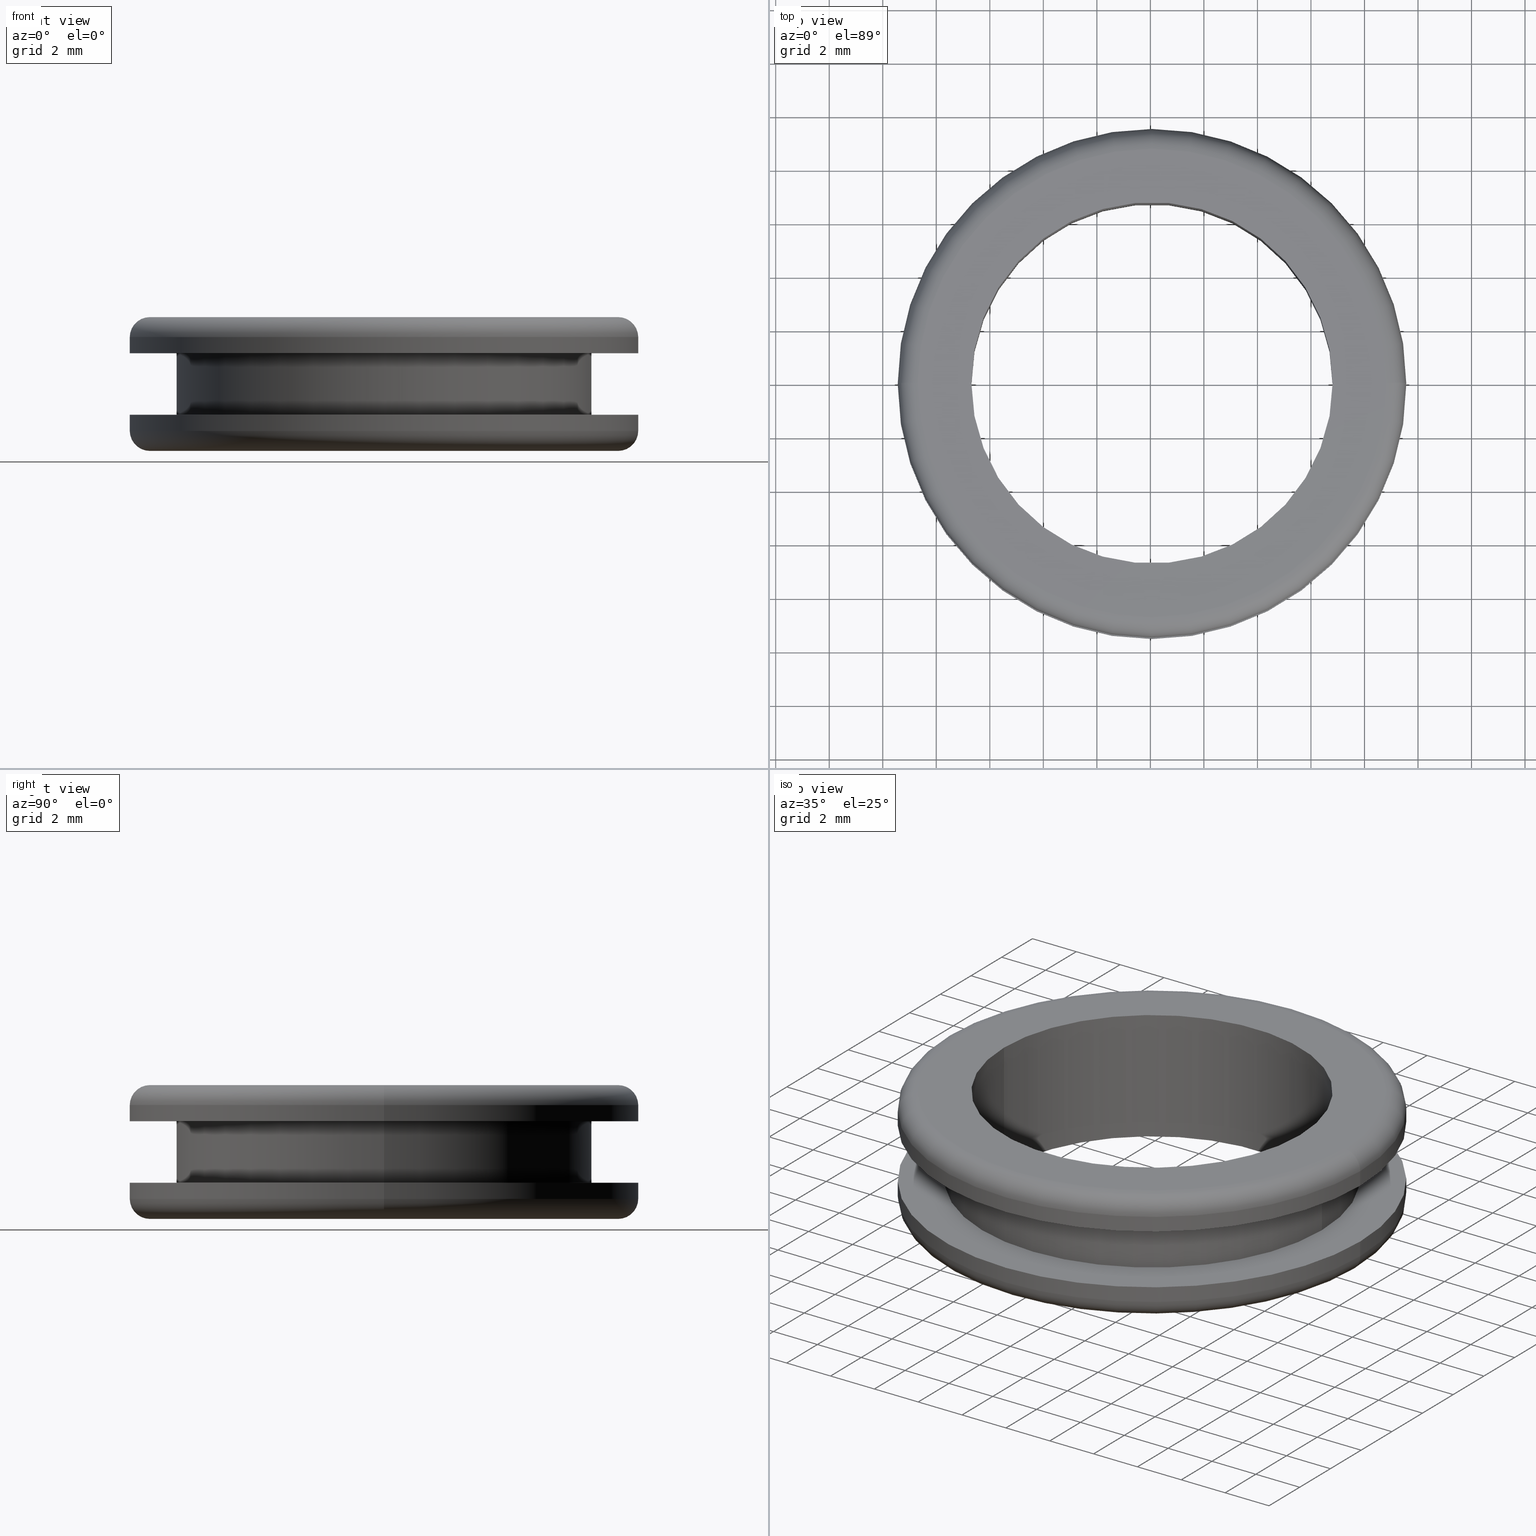
[diagram: canonical four-view strip — front | top / right | iso, engineering-drawing reading convention]
A machine part, canonical four-view strip (front | top / right | iso — engineering-drawing reading convention). The complete STEP part file that produces these views, byte-faithful:
ISO-10303-21;
HEADER;
FILE_DESCRIPTION (( 'STEP AP214' ),
    '1' );
FILE_NAME ('TM_346_3.STEP',
    '2018-06-13T02:46:59',
    ( '' ),
    ( '' ),
    'SwSTEP 2.0',
    'SolidWorks 2015',
    '' );
FILE_SCHEMA (( 'AUTOMOTIVE_DESIGN' ));
ENDSEC;

DATA;
#1 = DIRECTION ( 'NONE',  ( 0.0000000000000000000, 0.0000000000000000000, -1.000000000000000000 ) ) ;
#2 = AXIS2_PLACEMENT_3D ( 'NONE', #113, #468, #150 ) ;
#3 = PLANE ( 'NONE',  #21 ) ;
#4 = EDGE_CURVE ( 'NONE', #463, #54, #253, .T. ) ;
#5 = DIRECTION ( 'NONE',  ( 0.0000000000000000000, 0.0000000000000000000, -1.000000000000000000 ) ) ;
#6 = CYLINDRICAL_SURFACE ( 'NONE', #49, 6.750000000019698900 ) ;
#7 = CARTESIAN_POINT ( 'NONE',  ( 98.31085506629669600, 0.0000000000000000000, 0.0000000000000000000 ) ) ;
#8 = CARTESIAN_POINT ( 'NONE',  ( 113.8108550663362000, 0.0000000000000000000, 139.0502122310740000 ) ) ;
#9 = ORIENTED_EDGE ( 'NONE', *, *, #4, .F. ) ;
#10 = ORIENTED_EDGE ( 'NONE', *, *, #379, .T. ) ;
#11 = DIRECTION ( 'NONE',  ( -1.000000000000000000, 0.0000000000000000000, 0.0000000000000000000 ) ) ;
#12 = PRODUCT_DEFINITION ( 'UNKNOWN', '', #34, #80 ) ;
#13 = DIRECTION ( 'NONE',  ( -1.000000000000000000, 0.0000000000000000000, 0.0000000000000000000 ) ) ;
#14 = EDGE_CURVE ( 'NONE', #354, #384, #181, .T. ) ;
#15 = EDGE_LOOP ( 'NONE', ( #473, #342, #421, #455 ) ) ;
#16 = AXIS2_PLACEMENT_3D ( 'NONE', #374, #149, #477 ) ;
#17 = VERTEX_POINT ( 'NONE', #446 ) ;
#18 = CYLINDRICAL_SURFACE ( 'NONE', #232, 9.499999999876246500 ) ;
#19 = ORIENTED_EDGE ( 'NONE', *, *, #77, .T. ) ;
#20 = AXIS2_PLACEMENT_3D ( 'NONE', #165, #273, #13 ) ;
#21 = AXIS2_PLACEMENT_3D ( 'NONE', #192, #414, #444 ) ;
#22 = CIRCLE ( 'NONE', #16, 8.749999999876093800 ) ;
#23 = EDGE_CURVE ( 'NONE', #262, #316, #267, .T. ) ;
#24 = EDGE_CURVE ( 'NONE', #210, #262, #195, .T. ) ;
#25 = VECTOR ( 'NONE', #309, 1000.000000000000000 ) ;
#26 = ORIENTED_EDGE ( 'NONE', *, *, #114, .T. ) ;
#27 = CARTESIAN_POINT ( 'NONE',  ( 115.5608550661926400, 1.163414459174830700E-015, 0.0000000000000000000 ) ) ;
#28 = ADVANCED_FACE ( 'NONE', ( #285, #240 ), #32, .F. ) ;
#29 = VERTEX_POINT ( 'NONE', #438 ) ;
#30 = DIRECTION ( 'NONE',  ( -1.000000000000000000, 0.0000000000000000000, 0.0000000000000000000 ) ) ;
#31 = VERTEX_POINT ( 'NONE', #323 ) ;
#32 = PLANE ( 'NONE',  #277 ) ;
#33 = CARTESIAN_POINT ( 'NONE',  ( 114.8108550661924900, 1.071565949238759400E-015, 138.4502122310740000 ) ) ;
#34 = PRODUCT_DEFINITION_FORMATION_WITH_SPECIFIED_SOURCE ( 'ANY', '', #394, .NOT_KNOWN. ) ;
#35 = CARTESIAN_POINT ( 'NONE',  ( 97.31085506644029700, 0.0000000000000000000, 138.4502122310740000 ) ) ;
#36 = DIRECTION ( 'NONE',  ( -1.000000000000000000, 0.0000000000000000000, 0.0000000000000000000 ) ) ;
#37 = FILL_AREA_STYLE ('',( #312 ) ) ;
#38 = DIRECTION ( 'NONE',  ( 0.0000000000000000000, 0.0000000000000000000, -1.000000000000000000 ) ) ;
#39 = CYLINDRICAL_SURFACE ( 'NONE', #101, 7.750000000019699800 ) ;
#40 = CARTESIAN_POINT ( 'NONE',  ( 106.0608550663163900, 0.0000000000000000000, 137.7002122310740000 ) ) ;
#41 = EDGE_CURVE ( 'NONE', #308, #303, #168, .T. ) ;
#42 = DIRECTION ( 'NONE',  ( 0.0000000000000000000, 0.0000000000000000000, -1.000000000000000000 ) ) ;
#43 = CARTESIAN_POINT ( 'NONE',  ( 112.8108550663360900, 8.266365894268762600E-016, 142.7002122310740000 ) ) ;
#44 = FACE_OUTER_BOUND ( 'NONE', #347, .T. ) ;
#45 = EDGE_LOOP ( 'NONE', ( #9, #453 ) ) ;
#46 = AXIS2_PLACEMENT_3D ( 'NONE', #115, #337, #76 ) ;
#47 = CARTESIAN_POINT ( 'NONE',  ( 115.5608550661927900, 1.163414459174849600E-015, 139.0502122310740000 ) ) ;
#48 =( LENGTH_UNIT ( ) NAMED_UNIT ( * ) SI_UNIT ( .MILLI., .METRE. ) );
#49 = AXIS2_PLACEMENT_3D ( 'NONE', #244, #275, #126 ) ;
#50 = AXIS2_PLACEMENT_3D ( 'NONE', #299, #42, #36 ) ;
#51 = EDGE_CURVE ( 'NONE', #391, #404, #407, .T. ) ;
#52 = EDGE_CURVE ( 'NONE', #54, #210, #380, .T. ) ;
#53 = FACE_OUTER_BOUND ( 'NONE', #239, .T. ) ;
#54 = VERTEX_POINT ( 'NONE', #224 ) ;
#55 = VECTOR ( 'NONE', #338, 1000.000000000000000 ) ;
#56 = EDGE_LOOP ( 'NONE', ( #171, #134, #62, #164 ) ) ;
#57 = PRODUCT_RELATED_PRODUCT_CATEGORY ( 'part', '', ( #394 ) ) ;
#58 = EDGE_LOOP ( 'NONE', ( #357, #218 ) ) ;
#59 = EDGE_CURVE ( 'NONE', #384, #437, #266, .T. ) ;
#60 = EDGE_LOOP ( 'NONE', ( #140, #94, #399, #428 ) ) ;
#61 = ADVANCED_FACE ( 'NONE', ( #159, #160 ), #66, .F. ) ;
#62 = ORIENTED_EDGE ( 'NONE', *, *, #379, .F. ) ;
#63 = AXIS2_PLACEMENT_3D ( 'NONE', #148, #372, #332 ) ;
#64 = CARTESIAN_POINT ( 'NONE',  ( 106.0608550663163900, 0.0000000000000000000, 141.9502122310738100 ) ) ;
#65 = ORIENTED_EDGE ( 'NONE', *, *, #319, .T. ) ;
#66 = PLANE ( 'NONE',  #382 ) ;
#67 = DIRECTION ( 'NONE',  ( 0.0000000000000000000, 0.0000000000000000000, -1.000000000000000000 ) ) ;
#68 = ORIENTED_EDGE ( 'NONE', *, *, #114, .F. ) ;
#69 = DIRECTION ( 'NONE',  ( -1.000000000000000000, 0.0000000000000000000, 0.0000000000000000000 ) ) ;
#70 = DIRECTION ( 'NONE',  ( 0.0000000000000000000, 0.0000000000000000000, -1.000000000000000000 ) ) ;
#71 = DIRECTION ( 'NONE',  ( -1.224646799147353200E-016, 1.000000000000000000, 0.0000000000000000000 ) ) ;
#72 = FACE_OUTER_BOUND ( 'NONE', #189, .T. ) ;
#73 = DIRECTION ( 'NONE',  ( -0.0000000000000000000, -1.000000000000000000, -0.0000000000000000000 ) ) ;
#74 = STYLED_ITEM ( 'NONE', ( #362 ), #241 ) ;
#75 = AXIS2_PLACEMENT_3D ( 'NONE', #221, #472, #289 ) ;
#76 = DIRECTION ( 'NONE',  ( -1.000000000000000000, 0.0000000000000000000, 0.0000000000000000000 ) ) ;
#77 = EDGE_CURVE ( 'NONE', #404, #236, #246, .T. ) ;
#78 = EDGE_CURVE ( 'NONE', #463, #430, #255, .T. ) ;
#79 = DIRECTION ( 'NONE',  ( -1.000000000000000000, 0.0000000000000000000, 0.0000000000000000000 ) ) ;
#80 = PRODUCT_DEFINITION_CONTEXT ( 'detailed design', #223, 'design' ) ;
#81 = CARTESIAN_POINT ( 'NONE',  ( 106.0608550663163900, 0.0000000000000000000, 0.0000000000000000000 ) ) ;
#82 = CIRCLE ( 'NONE', #50, 9.499999999876093800 ) ;
#83 = COLOUR_RGB ( '',0.7921568627450980000, 0.8196078431372548800, 0.9333333333333333500 ) ;
#84 = VERTEX_POINT ( 'NONE', #416 ) ;
#85 = DIRECTION ( 'NONE',  ( 0.0000000000000000000, 0.0000000000000000000, -1.000000000000000000 ) ) ;
#86 = ORIENTED_EDGE ( 'NONE', *, *, #395, .T. ) ;
#87 = CARTESIAN_POINT ( 'NONE',  ( 99.31085506629669600, 0.0000000000000000000, 0.0000000000000000000 ) ) ;
#88 = SHAPE_DEFINITION_REPRESENTATION ( #296, #241 ) ;
#89 = DIRECTION ( 'NONE',  ( 0.0000000000000000000, 0.0000000000000000000, -1.000000000000000000 ) ) ;
#90 = CIRCLE ( 'NONE', #63, 7.750000000019699800 ) ;
#91 = MANIFOLD_SOLID_BREP ( '���߰�1', #327 ) ;
#92 = CARTESIAN_POINT ( 'NONE',  ( 0.0000000000000000000, 0.0000000000000000000, 0.0000000000000000000 ) ) ;
#93 = EDGE_CURVE ( 'NONE', #54, #463, #22, .T. ) ;
#94 = ORIENTED_EDGE ( 'NONE', *, *, #93, .T. ) ;
#95 = PRESENTATION_STYLE_ASSIGNMENT (( #227 ) ) ;
#96 = ORIENTED_EDGE ( 'NONE', *, *, #24, .T. ) ;
#97 = AXIS2_PLACEMENT_3D ( 'NONE', #478, #229, #447 ) ;
#98 = ORIENTED_EDGE ( 'NONE', *, *, #129, .F. ) ;
#99 = ORIENTED_EDGE ( 'NONE', *, *, #129, .T. ) ;
#100 = PRESENTATION_LAYER_ASSIGNMENT (  '', '', ( #74 ) ) ;
#101 = AXIS2_PLACEMENT_3D ( 'NONE', #111, #258, #226 ) ;
#102 = EDGE_CURVE ( 'NONE', #391, #354, #237, .T. ) ;
#103 = EDGE_CURVE ( 'NONE', #303, #308, #420, .T. ) ;
#104 = ADVANCED_FACE ( 'NONE', ( #44 ), #274, .F. ) ;
#105 = DIRECTION ( 'NONE',  ( 0.0000000000000000000, 0.0000000000000000000, -1.000000000000000000 ) ) ;
#106 = ORIENTED_EDGE ( 'NONE', *, *, #234, .F. ) ;
#107 = DIRECTION ( 'NONE',  ( 0.0000000000000000000, 0.0000000000000000000, -1.000000000000000000 ) ) ;
#108 = ORIENTED_EDGE ( 'NONE', *, *, #23, .T. ) ;
#109 = CARTESIAN_POINT ( 'NONE',  ( 115.5608550661924900, 1.163414459174811700E-015, 141.9502122310738100 ) ) ;
#110 = ORIENTED_EDGE ( 'NONE', *, *, #24, .F. ) ;
#111 = CARTESIAN_POINT ( 'NONE',  ( 106.0608550663163900, 0.0000000000000000000, 0.0000000000000000000 ) ) ;
#112 = CARTESIAN_POINT ( 'NONE',  ( 106.0608550663163900, 0.0000000000000000000, 142.7002122310740000 ) ) ;
#113 = CARTESIAN_POINT ( 'NONE',  ( 106.0608550663163900, 0.0000000000000000000, 0.0000000000000000000 ) ) ;
#114 = EDGE_CURVE ( 'NONE', #354, #236, #459, .T. ) ;
#115 = CARTESIAN_POINT ( 'NONE',  ( 106.0608550663163900, 0.0000000000000000000, 142.7002122310740000 ) ) ;
#116 = FILL_AREA_STYLE ('',( #298 ) ) ;
#117 = FACE_OUTER_BOUND ( 'NONE', #220, .T. ) ;
#118 = CARTESIAN_POINT ( 'NONE',  ( 106.0608550663163900, 0.0000000000000000000, 0.0000000000000000000 ) ) ;
#119 = CARTESIAN_POINT ( 'NONE',  ( 96.56085506644029700, 0.0000000000000000000, 141.3502122310739800 ) ) ;
#120 = EDGE_LOOP ( 'NONE', ( #209, #158 ) ) ;
#121 = DIRECTION ( 'NONE',  ( 0.0000000000000000000, 0.0000000000000000000, -1.000000000000000000 ) ) ;
#122 = ORIENTED_EDGE ( 'NONE', *, *, #130, .F. ) ;
#123 = AXIS2_PLACEMENT_3D ( 'NONE', #377, #194, #451 ) ;
#124 = ORIENTED_EDGE ( 'NONE', *, *, #51, .F. ) ;
#125 = CARTESIAN_POINT ( 'NONE',  ( 106.0608550663163900, 0.0000000000000000000, 141.9502122310738100 ) ) ;
#126 = DIRECTION ( 'NONE',  ( -1.000000000000000000, 0.0000000000000000000, 0.0000000000000000000 ) ) ;
#127 = MECHANICAL_DESIGN_GEOMETRIC_PRESENTATION_REPRESENTATION (  '', ( #74 ), #151 ) ;
#128 = AXIS2_PLACEMENT_3D ( 'NONE', #418, #196, #452 ) ;
#129 = EDGE_CURVE ( 'NONE', #84, #270, #90, .T. ) ;
#130 = EDGE_CURVE ( 'NONE', #303, #17, #450, .T. ) ;
#131 = TOROIDAL_SURFACE ( 'NONE', #412, 8.749999999876090200, 0.7500000000000000000 ) ;
#132 = ORIENTED_EDGE ( 'NONE', *, *, #103, .F. ) ;
#133 = VECTOR ( 'NONE', #157, 1000.000000000000000 ) ;
#134 = ORIENTED_EDGE ( 'NONE', *, *, #52, .T. ) ;
#135 = UNCERTAINTY_MEASURE_WITH_UNIT (LENGTH_MEASURE( 1.000000000000000100E-005 ), #215, 'distance_accuracy_value', 'NONE');
#136 = EDGE_CURVE ( 'NONE', #210, #430, #340, .T. ) ;
#137 = ADVANCED_FACE ( 'NONE', ( #435 ), #411, .T. ) ;
#138 = CARTESIAN_POINT ( 'NONE',  ( 113.8108550663360900, 9.491012693416113100E-016, 0.0000000000000000000 ) ) ;
#139 = CYLINDRICAL_SURFACE ( 'NONE', #247, 9.499999999876093800 ) ;
#140 = ORIENTED_EDGE ( 'NONE', *, *, #52, .F. ) ;
#141 = ADVANCED_FACE ( 'NONE', ( #53 ), #250, .T. ) ;
#142 = DIRECTION ( 'NONE',  ( 0.0000000000000000000, 0.0000000000000000000, -1.000000000000000000 ) ) ;
#143 = DIRECTION ( 'NONE',  ( 1.000000000000000000, 0.0000000000000000000, 0.0000000000000000000 ) ) ;
#144 = CIRCLE ( 'NONE', #284, 9.499999999876093800 ) ;
#145 = AXIS2_PLACEMENT_3D ( 'NONE', #439, #142, #402 ) ;
#146 = DIRECTION ( 'NONE',  ( -1.000000000000000000, 0.0000000000000000000, 0.0000000000000000000 ) ) ;
#147 = DIRECTION ( 'NONE',  ( 1.000000000000000000, 0.0000000000000000000, 0.0000000000000000000 ) ) ;
#148 = CARTESIAN_POINT ( 'NONE',  ( 106.0608550663163900, 0.0000000000000000000, 141.3502122310739800 ) ) ;
#149 = DIRECTION ( 'NONE',  ( 0.0000000000000000000, 0.0000000000000000000, -1.000000000000000000 ) ) ;
#150 = DIRECTION ( 'NONE',  ( -1.000000000000000000, 0.0000000000000000000, 0.0000000000000000000 ) ) ;
#151 =( GEOMETRIC_REPRESENTATION_CONTEXT ( 3 ) GLOBAL_UNCERTAINTY_ASSIGNED_CONTEXT ( ( #135 ) ) GLOBAL_UNIT_ASSIGNED_CONTEXT ( ( #215, #474, #329 ) ) REPRESENTATION_CONTEXT ( 'NONE', 'WORKASPACE' ) );
#152 = AXIS2_PLACEMENT_3D ( 'NONE', #64, #365, #293 ) ;
#153 = EDGE_CURVE ( 'NONE', #270, #84, #349, .T. ) ;
#154 = AXIS2_PLACEMENT_3D ( 'NONE', #475, #193, #441 ) ;
#155 = DIRECTION ( 'NONE',  ( 0.0000000000000000000, 0.0000000000000000000, -1.000000000000000000 ) ) ;
#156 = FACE_BOUND ( 'NONE', #58, .T. ) ;
#157 = DIRECTION ( 'NONE',  ( 0.0000000000000000000, 0.0000000000000000000, -1.000000000000000000 ) ) ;
#158 = ORIENTED_EDGE ( 'NONE', *, *, #466, .T. ) ;
#159 = FACE_BOUND ( 'NONE', #315, .T. ) ;
#160 = FACE_OUTER_BOUND ( 'NONE', #259, .T. ) ;
#161 = CARTESIAN_POINT ( 'NONE',  ( 97.31085506644029700, 0.0000000000000000000, 137.7002122310740000 ) ) ;
#162 = CARTESIAN_POINT ( 'NONE',  ( 106.0608550663163900, 0.0000000000000000000, 138.4502122310740000 ) ) ;
#163 = ORIENTED_EDGE ( 'NONE', *, *, #102, .T. ) ;
#164 = ORIENTED_EDGE ( 'NONE', *, *, #78, .F. ) ;
#165 = CARTESIAN_POINT ( 'NONE',  ( 106.0608550663163900, 0.0000000000000000000, 0.0000000000000000000 ) ) ;
#166 = EDGE_CURVE ( 'NONE', #236, #437, #443, .T. ) ;
#167 = ORIENTED_EDGE ( 'NONE', *, *, #351, .F. ) ;
#168 = CIRCLE ( 'NONE', #249, 6.750000000019698900 ) ;
#169 = VERTEX_POINT ( 'NONE', #217 ) ;
#170 = AXIS2_PLACEMENT_3D ( 'NONE', #326, #105, #69 ) ;
#171 = ORIENTED_EDGE ( 'NONE', *, *, #4, .T. ) ;
#172 = FACE_OUTER_BOUND ( 'NONE', #173, .T. ) ;
#173 = EDGE_LOOP ( 'NONE', ( #10, #96, #245, #238 ) ) ;
#174 = AXIS2_PLACEMENT_3D ( 'NONE', #344, #121, #383 ) ;
#175 = EDGE_CURVE ( 'NONE', #270, #31, #212, .T. ) ;
#176 = AXIS2_PLACEMENT_3D ( 'NONE', #35, #294, #333 ) ;
#177 = DIRECTION ( 'NONE',  ( 0.0000000000000000000, 0.0000000000000000000, 1.000000000000000000 ) ) ;
#178 = ADVANCED_FACE ( 'NONE', ( #260 ), #179, .T. ) ;
#179 = CYLINDRICAL_SURFACE ( 'NONE', #2, 9.499999999876093800 ) ;
#180 = SURFACE_STYLE_USAGE ( .BOTH. , #254 ) ;
#181 = CIRCLE ( 'NONE', #176, 0.7500000000000006700 ) ;
#182 = CARTESIAN_POINT ( 'NONE',  ( 106.0608550663163900, 0.0000000000000000000, 141.3502122310739800 ) ) ;
#183 = ADVANCED_FACE ( 'NONE', ( #313, #378 ), #3, .F. ) ;
#184 = DIRECTION ( 'NONE',  ( 0.0000000000000000000, 0.0000000000000000000, -1.000000000000000000 ) ) ;
#185 = DIRECTION ( 'NONE',  ( -1.000000000000000000, 0.0000000000000000000, 0.0000000000000000000 ) ) ;
#186 = ORIENTED_EDGE ( 'NONE', *, *, #41, .F. ) ;
#187 = DIRECTION ( 'NONE',  ( 0.0000000000000000000, 0.0000000000000000000, -1.000000000000000000 ) ) ;
#188 = CARTESIAN_POINT ( 'NONE',  ( 115.5608550661924900, 1.163414459174810600E-015, 141.3502122310739800 ) ) ;
#189 = EDGE_LOOP ( 'NONE', ( #204, #281, #163, #167 ) ) ;
#190 = CARTESIAN_POINT ( 'NONE',  ( 115.5608550661878100, 0.0000000000000000000, 141.3502122310739800 ) ) ;
#191 = CARTESIAN_POINT ( 'NONE',  ( 114.8108550661924900, 1.071565949238759400E-015, 141.9502122310738100 ) ) ;
#192 = CARTESIAN_POINT ( 'NONE',  ( 114.8108550661926000, 0.0000000000000000000, 137.7002122310740000 ) ) ;
#193 = DIRECTION ( 'NONE',  ( 0.0000000000000000000, 0.0000000000000000000, -1.000000000000000000 ) ) ;
#194 = DIRECTION ( 'NONE',  ( 0.0000000000000000000, 0.0000000000000000000, -1.000000000000000000 ) ) ;
#195 = LINE ( 'NONE', #261, #343 ) ;
#196 = DIRECTION ( 'NONE',  ( 0.0000000000000000000, 0.0000000000000000000, -1.000000000000000000 ) ) ;
#197 = EDGE_LOOP ( 'NONE', ( #26, #445, #424, #464 ) ) ;
#198 = CARTESIAN_POINT ( 'NONE',  ( 96.56085506644029700, 0.0000000000000000000, 138.4502122310740000 ) ) ;
#199 = EDGE_LOOP ( 'NONE', ( #222, #290 ) ) ;
#200 = DIRECTION ( 'NONE',  ( -1.000000000000000000, 0.0000000000000000000, 0.0000000000000000000 ) ) ;
#201 = AXIS2_PLACEMENT_3D ( 'NONE', #182, #436, #360 ) ;
#202 = ORIENTED_EDGE ( 'NONE', *, *, #449, .T. ) ;
#203 = CARTESIAN_POINT ( 'NONE',  ( 106.0608550663163900, 0.0000000000000000000, 137.7002122310740000 ) ) ;
#204 = ORIENTED_EDGE ( 'NONE', *, *, #77, .F. ) ;
#205 = DIRECTION ( 'NONE',  ( 0.0000000000000000000, 0.0000000000000000000, -1.000000000000000000 ) ) ;
#206 = EDGE_CURVE ( 'NONE', #31, #169, #431, .T. ) ;
#207 = AXIS2_PLACEMENT_3D ( 'NONE', #225, #187, #30 ) ;
#208 = CYLINDRICAL_SURFACE ( 'NONE', #20, 9.499999999876246500 ) ;
#209 = ORIENTED_EDGE ( 'NONE', *, *, #59, .T. ) ;
#210 = VERTEX_POINT ( 'NONE', #109 ) ;
#211 = ORIENTED_EDGE ( 'NONE', *, *, #23, .F. ) ;
#212 = LINE ( 'NONE', #138, #415 ) ;
#213 = FACE_OUTER_BOUND ( 'NONE', #197, .T. ) ;
#214 = CIRCLE ( 'NONE', #432, 8.749999999876093800 ) ;
#215 =( LENGTH_UNIT ( ) NAMED_UNIT ( * ) SI_UNIT ( .MILLI., .METRE. ) );
#216 = ADVANCED_FACE ( 'NONE', ( #219 ), #39, .T. ) ;
#217 = CARTESIAN_POINT ( 'NONE',  ( 98.31085506629669600, 0.0000000000000000000, 139.0502122310740000 ) ) ;
#218 = ORIENTED_EDGE ( 'NONE', *, *, #206, .T. ) ;
#219 = FACE_OUTER_BOUND ( 'NONE', #291, .T. ) ;
#220 = EDGE_LOOP ( 'NONE', ( #132, #393, #86, #366 ) ) ;
#221 = CARTESIAN_POINT ( 'NONE',  ( 106.0608550663163900, 0.0000000000000000000, 139.0502122310740000 ) ) ;
#222 = ORIENTED_EDGE ( 'NONE', *, *, #449, .F. ) ;
#223 = APPLICATION_CONTEXT ( 'automotive_design' ) ;
#224 = CARTESIAN_POINT ( 'NONE',  ( 114.8108550661924900, 1.117490204206784700E-015, 142.7002122310740000 ) ) ;
#225 = CARTESIAN_POINT ( 'NONE',  ( 106.0608550663163900, 0.0000000000000000000, 141.3502122310739800 ) ) ;
#226 = DIRECTION ( 'NONE',  ( -1.000000000000000000, 0.0000000000000000000, 0.0000000000000000000 ) ) ;
#227 = SURFACE_STYLE_USAGE ( .BOTH. , #448 ) ;
#228 = TOROIDAL_SURFACE ( 'NONE', #388, 8.749999999876090200, 0.7500000000000000000 ) ;
#229 = DIRECTION ( 'NONE',  ( 0.0000000000000000000, 0.0000000000000000000, -1.000000000000000000 ) ) ;
#230 = CARTESIAN_POINT ( 'NONE',  ( 96.56085506644014100, 0.0000000000000000000, 0.0000000000000000000 ) ) ;
#231 = DIRECTION ( 'NONE',  ( -1.000000000000000000, 0.0000000000000000000, 0.0000000000000000000 ) ) ;
#232 = AXIS2_PLACEMENT_3D ( 'NONE', #118, #155, #79 ) ;
#233 = LINE ( 'NONE', #87, #25 ) ;
#234 = EDGE_CURVE ( 'NONE', #169, #31, #461, .T. ) ;
#235 = DIRECTION ( 'NONE',  ( 0.0000000000000000000, 0.0000000000000000000, -1.000000000000000000 ) ) ;
#236 = VERTEX_POINT ( 'NONE', #408 ) ;
#237 = LINE ( 'NONE', #230, #403 ) ;
#238 = ORIENTED_EDGE ( 'NONE', *, *, #319, .F. ) ;
#239 = EDGE_LOOP ( 'NONE', ( #392, #288, #252, #324 ) ) ;
#240 = FACE_BOUND ( 'NONE', #385, .T. ) ;
#241 = ADVANCED_BREP_SHAPE_REPRESENTATION ( 'TM_346_3', ( #91, #465 ), #460 ) ;
#242 = DIRECTION ( 'NONE',  ( -1.000000000000000000, 0.0000000000000000000, 0.0000000000000000000 ) ) ;
#243 = CARTESIAN_POINT ( 'NONE',  ( 97.31085506644029700, 0.0000000000000000000, 142.7002122310740000 ) ) ;
#244 = CARTESIAN_POINT ( 'NONE',  ( 106.0608550663163900, 0.0000000000000000000, 0.0000000000000000000 ) ) ;
#245 = ORIENTED_EDGE ( 'NONE', *, *, #248, .F. ) ;
#246 = LINE ( 'NONE', #27, #55 ) ;
#247 = AXIS2_PLACEMENT_3D ( 'NONE', #81, #419, #381 ) ;
#248 = EDGE_CURVE ( 'NONE', #316, #262, #82, .T. ) ;
#249 = AXIS2_PLACEMENT_3D ( 'NONE', #112, #107, #371 ) ;
#250 = TOROIDAL_SURFACE ( 'NONE', #170, 8.749999999876090200, 0.7500000000000000000 ) ;
#251 = ADVANCED_FACE ( 'NONE', ( #278 ), #390, .T. ) ;
#252 = ORIENTED_EDGE ( 'NONE', *, *, #14, .T. ) ;
#253 = CIRCLE ( 'NONE', #154, 8.749999999876093800 ) ;
#254 = SURFACE_SIDE_STYLE ('',( #462 ) ) ;
#255 = CIRCLE ( 'NONE', #355, 0.7500000000000006700 ) ;
#256 =( NAMED_UNIT ( * ) SI_UNIT ( $, .STERADIAN. ) SOLID_ANGLE_UNIT ( ) );
#257 = VECTOR ( 'NONE', #235, 1000.000000000000000 ) ;
#258 = DIRECTION ( 'NONE',  ( 0.0000000000000000000, 0.0000000000000000000, -1.000000000000000000 ) ) ;
#259 = EDGE_LOOP ( 'NONE', ( #265, #108 ) ) ;
#260 = FACE_OUTER_BOUND ( 'NONE', #386, .T. ) ;
#261 = CARTESIAN_POINT ( 'NONE',  ( 115.5608550661924900, 1.163414459174811000E-015, 0.0000000000000000000 ) ) ;
#262 = VERTEX_POINT ( 'NONE', #188 ) ;
#263 = DIRECTION ( 'NONE',  ( -1.224646799147353200E-016, 1.000000000000000000, 0.0000000000000000000 ) ) ;
#264 = DIRECTION ( 'NONE',  ( 0.0000000000000000000, 0.0000000000000000000, -1.000000000000000000 ) ) ;
#265 = ORIENTED_EDGE ( 'NONE', *, *, #248, .T. ) ;
#266 = CIRCLE ( 'NONE', #352, 8.749999999876093800 ) ;
#267 = CIRCLE ( 'NONE', #207, 9.499999999876093800 ) ;
#268 = DIRECTION ( 'NONE',  ( 0.0000000000000000000, 0.0000000000000000000, -1.000000000000000000 ) ) ;
#269 = CARTESIAN_POINT ( 'NONE',  ( 96.56085506643999800, 0.0000000000000000000, 139.0502122310740000 ) ) ;
#270 = VERTEX_POINT ( 'NONE', #339 ) ;
#271 = DIRECTION ( 'NONE',  ( 0.0000000000000000000, 0.0000000000000000000, -1.000000000000000000 ) ) ;
#272 = ORIENTED_EDGE ( 'NONE', *, *, #136, .T. ) ;
#273 = DIRECTION ( 'NONE',  ( 0.0000000000000000000, 0.0000000000000000000, -1.000000000000000000 ) ) ;
#274 = CYLINDRICAL_SURFACE ( 'NONE', #123, 6.750000000019698900 ) ;
#275 = DIRECTION ( 'NONE',  ( 0.0000000000000000000, 0.0000000000000000000, -1.000000000000000000 ) ) ;
#276 = EDGE_CURVE ( 'NONE', #404, #391, #305, .T. ) ;
#277 = AXIS2_PLACEMENT_3D ( 'NONE', #471, #184, #401 ) ;
#278 = FACE_OUTER_BOUND ( 'NONE', #56, .T. ) ;
#279 = ORIENTED_EDGE ( 'NONE', *, *, #103, .T. ) ;
#280 = UNCERTAINTY_MEASURE_WITH_UNIT (LENGTH_MEASURE( 1.000000000000000100E-005 ), #48, 'distance_accuracy_value', 'NONE');
#281 = ORIENTED_EDGE ( 'NONE', *, *, #276, .T. ) ;
#282 = LINE ( 'NONE', #341, #133 ) ;
#283 = ORIENTED_EDGE ( 'NONE', *, *, #427, .T. ) ;
#284 = AXIS2_PLACEMENT_3D ( 'NONE', #307, #85, #346 ) ;
#285 = FACE_OUTER_BOUND ( 'NONE', #45, .T. ) ;
#286 = ADVANCED_FACE ( 'NONE', ( #72 ), #18, .T. ) ;
#287 =( LENGTH_UNIT ( ) NAMED_UNIT ( * ) SI_UNIT ( .MILLI., .METRE. ) );
#288 = ORIENTED_EDGE ( 'NONE', *, *, #351, .T. ) ;
#289 = DIRECTION ( 'NONE',  ( -1.000000000000000000, 0.0000000000000000000, 0.0000000000000000000 ) ) ;
#290 = ORIENTED_EDGE ( 'NONE', *, *, #395, .F. ) ;
#291 = EDGE_LOOP ( 'NONE', ( #99, #476, #106, #359 ) ) ;
#292 = APPLICATION_CONTEXT ( 'automotive_design' ) ;
#293 = DIRECTION ( 'NONE',  ( -1.000000000000000000, 0.0000000000000000000, 0.0000000000000000000 ) ) ;
#294 = DIRECTION ( 'NONE',  ( -0.0000000000000000000, -1.000000000000000000, -0.0000000000000000000 ) ) ;
#295 = CARTESIAN_POINT ( 'NONE',  ( 106.0608550663163900, 0.0000000000000000000, 0.0000000000000000000 ) ) ;
#296 = PRODUCT_DEFINITION_SHAPE ( 'NONE', 'NONE',  #12 ) ;
#297 = CIRCLE ( 'NONE', #174, 9.499999999876093800 ) ;
#298 = FILL_AREA_STYLE_COLOUR ( '', #345 ) ;
#299 = CARTESIAN_POINT ( 'NONE',  ( 106.0608550663163900, 0.0000000000000000000, 141.3502122310739800 ) ) ;
#300 = EDGE_CURVE ( 'NONE', #84, #169, #330, .T. ) ;
#301 = AXIS2_PLACEMENT_3D ( 'NONE', #328, #364, #146 ) ;
#302 = CARTESIAN_POINT ( 'NONE',  ( 99.31085506629669600, 0.0000000000000000000, 142.7002122310740000 ) ) ;
#303 = VERTEX_POINT ( 'NONE', #43 ) ;
#304 = PLANE ( 'NONE',  #311 ) ;
#305 = CIRCLE ( 'NONE', #128, 9.499999999876399300 ) ;
#306 = ORIENTED_EDGE ( 'NONE', *, *, #41, .T. ) ;
#307 = CARTESIAN_POINT ( 'NONE',  ( 106.0608550663163900, 0.0000000000000000000, 141.9502122310738100 ) ) ;
#308 = VERTEX_POINT ( 'NONE', #302 ) ;
#309 = DIRECTION ( 'NONE',  ( 0.0000000000000000000, 0.0000000000000000000, -1.000000000000000000 ) ) ;
#310 = CARTESIAN_POINT ( 'NONE',  ( 106.0608550663163900, 0.0000000000000000000, 137.7002122310740000 ) ) ;
#311 = AXIS2_PLACEMENT_3D ( 'NONE', #8, #423, #200 ) ;
#312 = FILL_AREA_STYLE_COLOUR ( '', #83 ) ;
#313 = FACE_BOUND ( 'NONE', #199, .T. ) ;
#314 = CIRCLE ( 'NONE', #358, 6.750000000019698900 ) ;
#315 = EDGE_LOOP ( 'NONE', ( #98, #356 ) ) ;
#316 = VERTEX_POINT ( 'NONE', #119 ) ;
#317 = UNCERTAINTY_MEASURE_WITH_UNIT (LENGTH_MEASURE( 1.000000000000000100E-005 ), #287, 'distance_accuracy_value', 'NONE');
#318 = FACE_OUTER_BOUND ( 'NONE', #457, .T. ) ;
#319 = EDGE_CURVE ( 'NONE', #430, #316, #282, .T. ) ;
#320 = AXIS2_PLACEMENT_3D ( 'NONE', #191, #263, #368 ) ;
#321 = ORIENTED_EDGE ( 'NONE', *, *, #51, .T. ) ;
#322 =( NAMED_UNIT ( * ) PLANE_ANGLE_UNIT ( ) SI_UNIT ( $, .RADIAN. ) );
#323 = CARTESIAN_POINT ( 'NONE',  ( 113.8108550663360900, 9.491012693416115100E-016, 139.0502122310740000 ) ) ;
#324 = ORIENTED_EDGE ( 'NONE', *, *, #466, .F. ) ;
#325 = ADVANCED_FACE ( 'NONE', ( #172 ), #139, .T. ) ;
#326 = CARTESIAN_POINT ( 'NONE',  ( 106.0608550663163900, 0.0000000000000000000, 138.4502122310740000 ) ) ;
#327 = CLOSED_SHELL ( 'NONE', ( #397, #467, #216, #325, #251, #469, #183, #104, #28, #434, #178, #61, #137, #361, #286, #141 ) ) ;
#328 = CARTESIAN_POINT ( 'NONE',  ( 106.0608550663163900, 0.0000000000000000000, 139.0502122310740000 ) ) ;
#329 =( NAMED_UNIT ( * ) SI_UNIT ( $, .STERADIAN. ) SOLID_ANGLE_UNIT ( ) );
#330 = LINE ( 'NONE', #7, #257 ) ;
#331 = CARTESIAN_POINT ( 'NONE',  ( 106.0608550663163900, 0.0000000000000000000, 139.0502122310740000 ) ) ;
#332 = DIRECTION ( 'NONE',  ( -1.000000000000000000, 0.0000000000000000000, 0.0000000000000000000 ) ) ;
#333 = DIRECTION ( 'NONE',  ( 0.0000000000000000000, 0.0000000000000000000, -1.000000000000000000 ) ) ;
#334 = AXIS2_PLACEMENT_3D ( 'NONE', #203, #456, #242 ) ;
#335 = DIRECTION ( 'NONE',  ( -1.000000000000000000, -1.224646799147352000E-016, 0.0000000000000000000 ) ) ;
#336 = DIRECTION ( 'NONE',  ( 0.0000000000000000000, 0.0000000000000000000, -1.000000000000000000 ) ) ;
#337 = DIRECTION ( 'NONE',  ( 0.0000000000000000000, 0.0000000000000000000, -1.000000000000000000 ) ) ;
#338 = DIRECTION ( 'NONE',  ( 0.0000000000000000000, 0.0000000000000000000, -1.000000000000000000 ) ) ;
#339 = CARTESIAN_POINT ( 'NONE',  ( 113.8108550663360900, 9.491012693416115100E-016, 141.3502122310739800 ) ) ;
#340 = CIRCLE ( 'NONE', #145, 9.499999999876093800 ) ;
#341 = CARTESIAN_POINT ( 'NONE',  ( 96.56085506644029700, 0.0000000000000000000, 0.0000000000000000000 ) ) ;
#342 = ORIENTED_EDGE ( 'NONE', *, *, #153, .T. ) ;
#343 = VECTOR ( 'NONE', #70, 1000.000000000000000 ) ;
#344 = CARTESIAN_POINT ( 'NONE',  ( 106.0608550663163900, 0.0000000000000000000, 138.4502122310740000 ) ) ;
#345 = COLOUR_RGB ( '',0.7921568627450980000, 0.8196078431372548800, 0.9333333333333333500 ) ;
#346 = DIRECTION ( 'NONE',  ( -1.000000000000000000, 0.0000000000000000000, 0.0000000000000000000 ) ) ;
#347 = EDGE_LOOP ( 'NONE', ( #122, #186, #283, #202 ) ) ;
#348 = CARTESIAN_POINT ( 'NONE',  ( 114.8108550661924900, 1.117490204206784700E-015, 137.7002122310740000 ) ) ;
#349 = CIRCLE ( 'NONE', #201, 7.750000000019699800 ) ;
#350 = DIRECTION ( 'NONE',  ( -1.000000000000000000, 0.0000000000000000000, 0.0000000000000000000 ) ) ;
#351 = EDGE_CURVE ( 'NONE', #236, #354, #297, .T. ) ;
#352 = AXIS2_PLACEMENT_3D ( 'NONE', #40, #1, #231 ) ;
#353 = VECTOR ( 'NONE', #5, 1000.000000000000000 ) ;
#354 = VERTEX_POINT ( 'NONE', #198 ) ;
#355 = AXIS2_PLACEMENT_3D ( 'NONE', #376, #73, #264 ) ;
#356 = ORIENTED_EDGE ( 'NONE', *, *, #153, .F. ) ;
#357 = ORIENTED_EDGE ( 'NONE', *, *, #234, .T. ) ;
#358 = AXIS2_PLACEMENT_3D ( 'NONE', #310, #89, #350 ) ;
#359 = ORIENTED_EDGE ( 'NONE', *, *, #300, .F. ) ;
#360 = DIRECTION ( 'NONE',  ( -1.000000000000000000, 0.0000000000000000000, 0.0000000000000000000 ) ) ;
#361 = ADVANCED_FACE ( 'NONE', ( #422, #156 ), #304, .F. ) ;
#362 = PRESENTATION_STYLE_ASSIGNMENT (( #180 ) ) ;
#363 =( NAMED_UNIT ( * ) PLANE_ANGLE_UNIT ( ) SI_UNIT ( $, .RADIAN. ) );
#364 = DIRECTION ( 'NONE',  ( 0.0000000000000000000, 0.0000000000000000000, -1.000000000000000000 ) ) ;
#365 = DIRECTION ( 'NONE',  ( 0.0000000000000000000, 0.0000000000000000000, -1.000000000000000000 ) ) ;
#366 = ORIENTED_EDGE ( 'NONE', *, *, #427, .F. ) ;
#367 =( NAMED_UNIT ( * ) SI_UNIT ( $, .STERADIAN. ) SOLID_ANGLE_UNIT ( ) );
#368 = DIRECTION ( 'NONE',  ( -1.000000000000000000, -1.224646799147352000E-016, 0.0000000000000000000 ) ) ;
#369 = EDGE_LOOP ( 'NONE', ( #124, #406 ) ) ;
#370 = DIRECTION ( 'NONE',  ( -1.000000000000000000, 0.0000000000000000000, 0.0000000000000000000 ) ) ;
#371 = DIRECTION ( 'NONE',  ( -1.000000000000000000, 0.0000000000000000000, 0.0000000000000000000 ) ) ;
#372 = DIRECTION ( 'NONE',  ( 0.0000000000000000000, 0.0000000000000000000, -1.000000000000000000 ) ) ;
#373 = CIRCLE ( 'NONE', #334, 6.750000000019698900 ) ;
#374 = CARTESIAN_POINT ( 'NONE',  ( 106.0608550663163900, 0.0000000000000000000, 142.7002122310740000 ) ) ;
#375 = DIRECTION ( 'NONE',  ( 0.0000000000000000000, 0.0000000000000000000, -1.000000000000000000 ) ) ;
#376 = CARTESIAN_POINT ( 'NONE',  ( 97.31085506644029700, 0.0000000000000000000, 141.9502122310738100 ) ) ;
#377 = CARTESIAN_POINT ( 'NONE',  ( 106.0608550663163900, 0.0000000000000000000, 0.0000000000000000000 ) ) ;
#378 = FACE_OUTER_BOUND ( 'NONE', #120, .T. ) ;
#379 = EDGE_CURVE ( 'NONE', #430, #210, #144, .T. ) ;
#380 = CIRCLE ( 'NONE', #320, 0.7500000000000006700 ) ;
#381 = DIRECTION ( 'NONE',  ( -1.000000000000000000, 0.0000000000000000000, 0.0000000000000000000 ) ) ;
#382 = AXIS2_PLACEMENT_3D ( 'NONE', #190, #409, #147 ) ;
#383 = DIRECTION ( 'NONE',  ( -1.000000000000000000, 0.0000000000000000000, 0.0000000000000000000 ) ) ;
#384 = VERTEX_POINT ( 'NONE', #161 ) ;
#385 = EDGE_LOOP ( 'NONE', ( #306, #279 ) ) ;
#386 = EDGE_LOOP ( 'NONE', ( #110, #272, #65, #211 ) ) ;
#387 = CARTESIAN_POINT ( 'NONE',  ( 96.56085506644029700, 0.0000000000000000000, 141.9502122310738100 ) ) ;
#388 = AXIS2_PLACEMENT_3D ( 'NONE', #162, #268, #11 ) ;
#389 = AXIS2_PLACEMENT_3D ( 'NONE', #295, #38, #185 ) ;
#390 = TOROIDAL_SURFACE ( 'NONE', #152, 8.749999999876090200, 0.7500000000000000000 ) ;
#391 = VERTEX_POINT ( 'NONE', #269 ) ;
#392 = ORIENTED_EDGE ( 'NONE', *, *, #166, .F. ) ;
#393 = ORIENTED_EDGE ( 'NONE', *, *, #130, .T. ) ;
#394 = PRODUCT ( 'TM_346_3', 'TM_346_3', '', ( #405 ) ) ;
#395 = EDGE_CURVE ( 'NONE', #17, #29, #373, .T. ) ;
#396 = APPLICATION_PROTOCOL_DEFINITION ( 'draft international standard', 'automotive_design', 1998, #223 ) ;
#397 = ADVANCED_FACE ( 'NONE', ( #213 ), #228, .T. ) ;
#398 = APPLICATION_PROTOCOL_DEFINITION ( 'draft international standard', 'automotive_design', 1998, #292 ) ;
#399 = ORIENTED_EDGE ( 'NONE', *, *, #78, .T. ) ;
#400 = STYLED_ITEM ( 'NONE', ( #95 ), #91 ) ;
#401 = DIRECTION ( 'NONE',  ( -1.000000000000000000, 0.0000000000000000000, 0.0000000000000000000 ) ) ;
#402 = DIRECTION ( 'NONE',  ( -1.000000000000000000, 0.0000000000000000000, 0.0000000000000000000 ) ) ;
#403 = VECTOR ( 'NONE', #336, 1000.000000000000000 ) ;
#404 = VERTEX_POINT ( 'NONE', #47 ) ;
#405 = PRODUCT_CONTEXT ( 'NONE', #292, 'mechanical' ) ;
#406 = ORIENTED_EDGE ( 'NONE', *, *, #276, .F. ) ;
#407 = CIRCLE ( 'NONE', #301, 9.499999999876399300 ) ;
#408 = CARTESIAN_POINT ( 'NONE',  ( 115.5608550661924900, 1.163414459174820000E-015, 138.4502122310740000 ) ) ;
#409 = DIRECTION ( 'NONE',  ( 0.0000000000000000000, 0.0000000000000000000, 1.000000000000000000 ) ) ;
#410 = CARTESIAN_POINT ( 'NONE',  ( 112.8108550663360900, 8.266365894268760700E-016, 0.0000000000000000000 ) ) ;
#411 = CYLINDRICAL_SURFACE ( 'NONE', #389, 7.750000000019699800 ) ;
#412 = AXIS2_PLACEMENT_3D ( 'NONE', #125, #271, #425 ) ;
#413 = AXIS2_PLACEMENT_3D ( 'NONE', #33, #71, #335 ) ;
#414 = DIRECTION ( 'NONE',  ( 0.0000000000000000000, 0.0000000000000000000, 1.000000000000000000 ) ) ;
#415 = VECTOR ( 'NONE', #375, 1000.000000000000000 ) ;
#416 = CARTESIAN_POINT ( 'NONE',  ( 98.31085506629669600, 0.0000000000000000000, 141.3502122310739800 ) ) ;
#417 = FACE_OUTER_BOUND ( 'NONE', #60, .T. ) ;
#418 = CARTESIAN_POINT ( 'NONE',  ( 106.0608550663163900, 0.0000000000000000000, 139.0502122310740000 ) ) ;
#419 = DIRECTION ( 'NONE',  ( 0.0000000000000000000, 0.0000000000000000000, -1.000000000000000000 ) ) ;
#420 = CIRCLE ( 'NONE', #46, 6.750000000019698900 ) ;
#421 = ORIENTED_EDGE ( 'NONE', *, *, #300, .T. ) ;
#422 = FACE_OUTER_BOUND ( 'NONE', #369, .T. ) ;
#423 = DIRECTION ( 'NONE',  ( 0.0000000000000000000, 0.0000000000000000000, -1.000000000000000000 ) ) ;
#424 = ORIENTED_EDGE ( 'NONE', *, *, #59, .F. ) ;
#425 = DIRECTION ( 'NONE',  ( -1.000000000000000000, 0.0000000000000000000, 0.0000000000000000000 ) ) ;
#426 = CARTESIAN_POINT ( 'NONE',  ( 106.0608550663163900, 0.0000000000000000000, 137.7002122310740000 ) ) ;
#427 = EDGE_CURVE ( 'NONE', #308, #29, #233, .T. ) ;
#428 = ORIENTED_EDGE ( 'NONE', *, *, #136, .F. ) ;
#429 = PRESENTATION_LAYER_ASSIGNMENT (  '', '', ( #400 ) ) ;
#430 = VERTEX_POINT ( 'NONE', #387 ) ;
#431 = CIRCLE ( 'NONE', #433, 7.750000000019699800 ) ;
#432 = AXIS2_PLACEMENT_3D ( 'NONE', #426, #205, #458 ) ;
#433 = AXIS2_PLACEMENT_3D ( 'NONE', #331, #67, #370 ) ;
#434 = ADVANCED_FACE ( 'NONE', ( #417 ), #131, .T. ) ;
#435 = FACE_OUTER_BOUND ( 'NONE', #15, .T. ) ;
#436 = DIRECTION ( 'NONE',  ( 0.0000000000000000000, 0.0000000000000000000, -1.000000000000000000 ) ) ;
#437 = VERTEX_POINT ( 'NONE', #348 ) ;
#438 = CARTESIAN_POINT ( 'NONE',  ( 99.31085506629669600, 0.0000000000000000000, 137.7002122310740000 ) ) ;
#439 = CARTESIAN_POINT ( 'NONE',  ( 106.0608550663163900, 0.0000000000000000000, 141.9502122310738100 ) ) ;
#440 = SURFACE_STYLE_FILL_AREA ( #116 ) ;
#441 = DIRECTION ( 'NONE',  ( -1.000000000000000000, 0.0000000000000000000, 0.0000000000000000000 ) ) ;
#442 = ORIENTED_EDGE ( 'NONE', *, *, #102, .F. ) ;
#443 = CIRCLE ( 'NONE', #413, 0.7500000000000006700 ) ;
#444 = DIRECTION ( 'NONE',  ( 1.000000000000000000, 0.0000000000000000000, 0.0000000000000000000 ) ) ;
#445 = ORIENTED_EDGE ( 'NONE', *, *, #166, .T. ) ;
#446 = CARTESIAN_POINT ( 'NONE',  ( 112.8108550663360900, 8.266365894268762600E-016, 137.7002122310740000 ) ) ;
#447 = DIRECTION ( 'NONE',  ( -1.000000000000000000, 0.0000000000000000000, 0.0000000000000000000 ) ) ;
#448 = SURFACE_SIDE_STYLE ('',( #440 ) ) ;
#449 = EDGE_CURVE ( 'NONE', #29, #17, #314, .T. ) ;
#450 = LINE ( 'NONE', #410, #353 ) ;
#451 = DIRECTION ( 'NONE',  ( -1.000000000000000000, 0.0000000000000000000, 0.0000000000000000000 ) ) ;
#452 = DIRECTION ( 'NONE',  ( -1.000000000000000000, 0.0000000000000000000, 0.0000000000000000000 ) ) ;
#453 = ORIENTED_EDGE ( 'NONE', *, *, #93, .F. ) ;
#454 = MECHANICAL_DESIGN_GEOMETRIC_PRESENTATION_REPRESENTATION (  '', ( #400 ), #470 ) ;
#455 = ORIENTED_EDGE ( 'NONE', *, *, #206, .F. ) ;
#456 = DIRECTION ( 'NONE',  ( 0.0000000000000000000, 0.0000000000000000000, -1.000000000000000000 ) ) ;
#457 = EDGE_LOOP ( 'NONE', ( #321, #19, #68, #442 ) ) ;
#458 = DIRECTION ( 'NONE',  ( -1.000000000000000000, 0.0000000000000000000, 0.0000000000000000000 ) ) ;
#459 = CIRCLE ( 'NONE', #97, 9.499999999876093800 ) ;
#460 =( GEOMETRIC_REPRESENTATION_CONTEXT ( 3 ) GLOBAL_UNCERTAINTY_ASSIGNED_CONTEXT ( ( #280 ) ) GLOBAL_UNIT_ASSIGNED_CONTEXT ( ( #48, #322, #367 ) ) REPRESENTATION_CONTEXT ( 'NONE', 'WORKASPACE' ) );
#461 = CIRCLE ( 'NONE', #75, 7.750000000019699800 ) ;
#462 = SURFACE_STYLE_FILL_AREA ( #37 ) ;
#463 = VERTEX_POINT ( 'NONE', #243 ) ;
#464 = ORIENTED_EDGE ( 'NONE', *, *, #14, .F. ) ;
#465 = AXIS2_PLACEMENT_3D ( 'NONE', #92, #177, #143 ) ;
#466 = EDGE_CURVE ( 'NONE', #437, #384, #214, .T. ) ;
#467 = ADVANCED_FACE ( 'NONE', ( #318 ), #208, .T. ) ;
#468 = DIRECTION ( 'NONE',  ( 0.0000000000000000000, 0.0000000000000000000, -1.000000000000000000 ) ) ;
#469 = ADVANCED_FACE ( 'NONE', ( #117 ), #6, .F. ) ;
#470 =( GEOMETRIC_REPRESENTATION_CONTEXT ( 3 ) GLOBAL_UNCERTAINTY_ASSIGNED_CONTEXT ( ( #317 ) ) GLOBAL_UNIT_ASSIGNED_CONTEXT ( ( #287, #363, #256 ) ) REPRESENTATION_CONTEXT ( 'NONE', 'WORKASPACE' ) );
#471 = CARTESIAN_POINT ( 'NONE',  ( 112.8108550663362000, 0.0000000000000000000, 142.7002122310740000 ) ) ;
#472 = DIRECTION ( 'NONE',  ( 0.0000000000000000000, 0.0000000000000000000, -1.000000000000000000 ) ) ;
#473 = ORIENTED_EDGE ( 'NONE', *, *, #175, .F. ) ;
#474 =( NAMED_UNIT ( * ) PLANE_ANGLE_UNIT ( ) SI_UNIT ( $, .RADIAN. ) );
#475 = CARTESIAN_POINT ( 'NONE',  ( 106.0608550663163900, 0.0000000000000000000, 142.7002122310740000 ) ) ;
#476 = ORIENTED_EDGE ( 'NONE', *, *, #175, .T. ) ;
#477 = DIRECTION ( 'NONE',  ( -1.000000000000000000, 0.0000000000000000000, 0.0000000000000000000 ) ) ;
#478 = CARTESIAN_POINT ( 'NONE',  ( 106.0608550663163900, 0.0000000000000000000, 138.4502122310740000 ) ) ;
ENDSEC;
END-ISO-10303-21;
